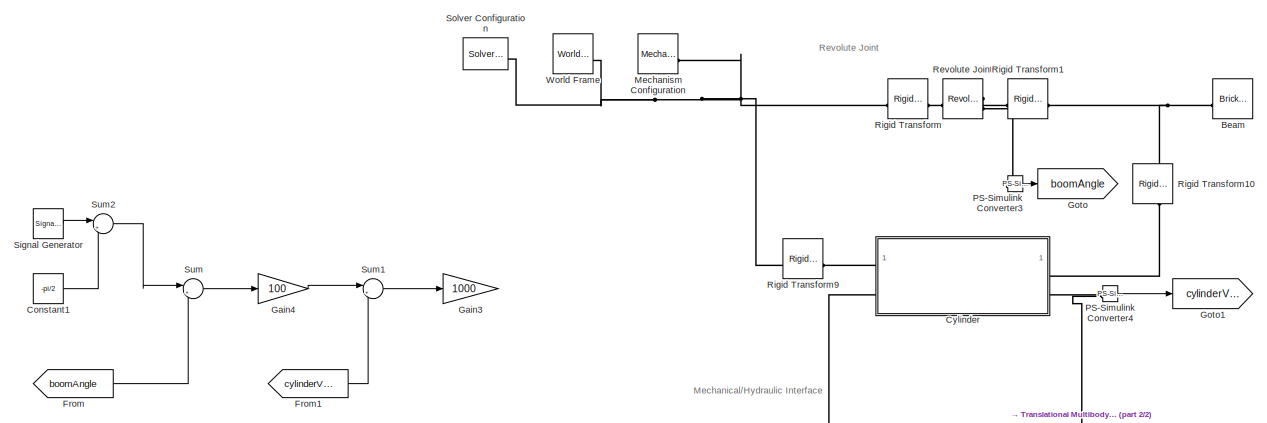
[diagram: root canvas - part 1/2, full width, top band]
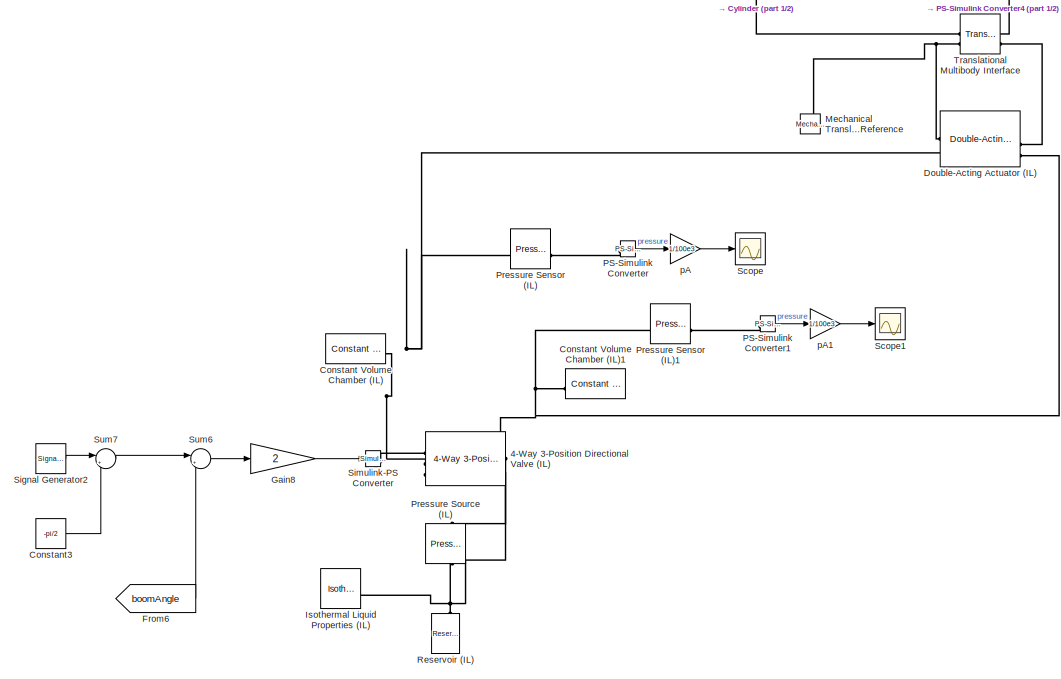
[diagram: root canvas - part 2/2, full width, bottom band]
MODEL slx_41abab94a683
KIND model
CONFIG AbsTol = auto
CONFIG EnableMultiTasking = off
CONFIG FixedStep = 0.001
CONFIG MaxStep = auto
CONFIG MinStep = auto
CONFIG RelTol = 1e-3
CONFIG SampleTimeConstraint = Unconstrained
CONFIG SolverName = FixedStepAuto
CONFIG StartTime = 0.0
CONFIG StopTime = 50
WORKSPACE source: MATLAB code (in-file)
WORKSPACE code: clear;
WORKSPACE rho = 875
WORKSPACE beta = 1000
WORKSPACE pP = 140
WORKSPACE dp0 = 70e5  (= 7000000)
WORKSPACE Q0 = 100/6e4  (= 0.00166666666667)
WORKSPACE Cd = 0.75
WORKSPACE Ad_SI_max = Q0/(Cd*(2/rho*dp0)^0.5)  (= 1.75682092232e-05)
WORKSPACE Ad_max = Ad_SI_max * 1e6  (= 17.5682092232)
WORKSPACE DM = 250
WORKSPACE m = 200
WORKSPACE Wm = m*9.81  (= 1962)
WORKSPACE rW = 0.25
WORKSPACE MW = Wm*rW  (= 490.5)
WORKSPACE Jeff = 0.01 + 0.1 + m*rW^2  (= 12.61)
BLOCK [Reference] 4-Way 3-Position Directional Valve (IL)  REF=SimscapeFluids_lib/Isothermal Liquid/Valves & Orifices/Directional Control
Valves/4-Way 3-Position
Directional Valve
(IL)
  SourceBlock = SimscapeFluids_lib/Isothermal Liquid/Valves & Orifices/Directional Control\nValves/4-Way 3-Position\nDirectional Valve\n(IL)
  SourceType = 4-Way 3-Position\nDirectional Valve\n(IL)
BLOCK [Reference] Beam  REF=sm_lib/Body Elements/Brick Solid
  SourceBlock = sm_lib/Body Elements/Brick Solid
  SourceType = Brick Solid
BLOCK [Reference] Constant Volume Chamber (IL)  REF=fl_lib/Isothermal Liquid/Elements/Constant Volume
Chamber (IL)
  SourceBlock = fl_lib/Isothermal Liquid/Elements/Constant Volume\nChamber (IL)
  SourceType = Constant Volume\nChamber (IL)
BLOCK [Reference] Constant Volume Chamber (IL)1  REF=fl_lib/Isothermal Liquid/Elements/Constant Volume
Chamber (IL)
  SourceBlock = fl_lib/Isothermal Liquid/Elements/Constant Volume\nChamber (IL)
  SourceType = Constant Volume\nChamber (IL)
BLOCK [Constant] Constant1
  Value = -pi/2
BLOCK [Constant] Constant3
  Value = -pi/2
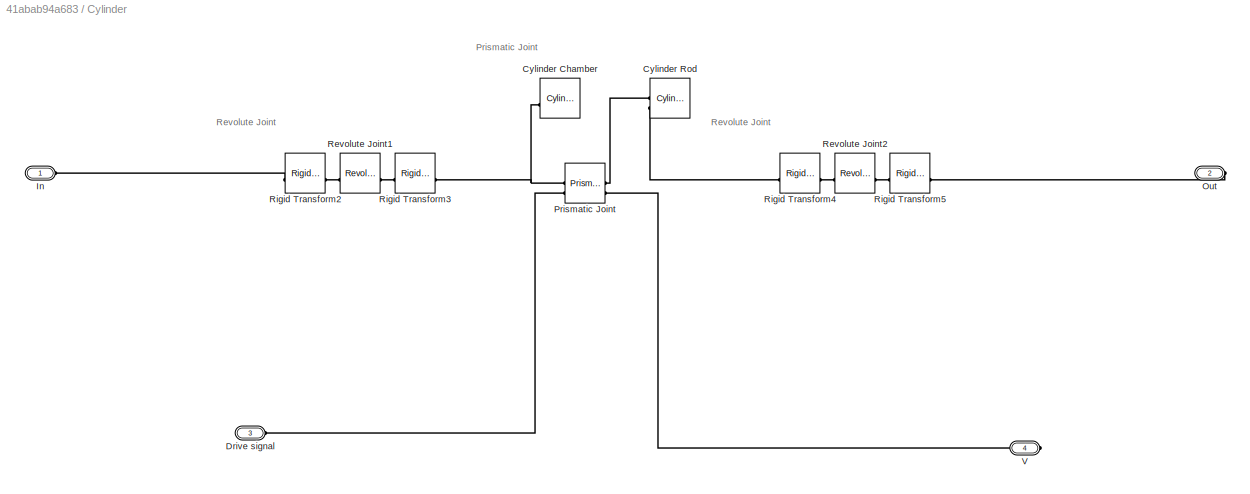
BLOCK [SubSystem] Cylinder
BLOCK [Reference] Cylinder/Cylinder Chamber  REF=sm_lib/Body Elements/Cylindrical Solid
  SourceBlock = sm_lib/Body Elements/Cylindrical Solid
  SourceType = Cylindrical Solid
BLOCK [Reference] Cylinder/Cylinder Rod  REF=sm_lib/Body Elements/Cylindrical Solid
  SourceBlock = sm_lib/Body Elements/Cylindrical Solid
  SourceType = Cylindrical Solid
BLOCK [PMIOPort] Cylinder/Drive signal
  Port = 3
  Side = Left
BLOCK [PMIOPort] Cylinder/In
  Side = Left
BLOCK [PMIOPort] Cylinder/Out
  Port = 2
  Side = Right
BLOCK [Reference] Cylinder/Prismatic Joint  REF=sm_lib/Joints/Prismatic
Joint
  SourceBlock = sm_lib/Joints/Prismatic\nJoint
  SourceType = Prismatic\nJoint
BLOCK [Reference] Cylinder/Revolute Joint1  REF=sm_lib/Joints/Revolute Joint
  SourceBlock = sm_lib/Joints/Revolute Joint
  SourceType = Revolute Joint
BLOCK [Reference] Cylinder/Revolute Joint2  REF=sm_lib/Joints/Revolute Joint
  SourceBlock = sm_lib/Joints/Revolute Joint
  SourceType = Revolute Joint
BLOCK [Reference] Cylinder/Rigid Transform2  REF=sm_lib/Frames and
Transforms/Rigid
Transform
  SourceBlock = sm_lib/Frames and\nTransforms/Rigid\nTransform
  SourceType = Rigid\nTransform
BLOCK [Reference] Cylinder/Rigid Transform3  REF=sm_lib/Frames and
Transforms/Rigid
Transform
  SourceBlock = sm_lib/Frames and\nTransforms/Rigid\nTransform
  SourceType = Rigid\nTransform
BLOCK [Reference] Cylinder/Rigid Transform4  REF=sm_lib/Frames and
Transforms/Rigid
Transform
  SourceBlock = sm_lib/Frames and\nTransforms/Rigid\nTransform
  SourceType = Rigid\nTransform
BLOCK [Reference] Cylinder/Rigid Transform5  REF=sm_lib/Frames and
Transforms/Rigid
Transform
  SourceBlock = sm_lib/Frames and\nTransforms/Rigid\nTransform
  SourceType = Rigid\nTransform
BLOCK [PMIOPort] Cylinder/V
  Port = 4
  Side = Right
BLOCK [Reference] Double-Acting Actuator (IL)  REF=SimscapeFluids_lib/Isothermal Liquid/Actuators/Double-Acting
Actuator (IL)
  SourceBlock = SimscapeFluids_lib/Isothermal Liquid/Actuators/Double-Acting\nActuator (IL)
  SourceType = Double-Acting\nActuator (IL)
BLOCK [From] From
  GotoTag = boomAngle
BLOCK [From] From1
  GotoTag = cylinderVel
BLOCK [From] From6
  GotoTag = boomAngle
BLOCK [Gain] Gain3
  Gain = 1000
BLOCK [Gain] Gain4
  Gain = 100
BLOCK [Gain] Gain8
  Gain = 2
BLOCK [Goto] Goto
  GotoTag = boomAngle
BLOCK [Goto] Goto1
  GotoTag = cylinderVel
BLOCK [Reference] Isothermal Liquid Properties (IL)  REF=fl_lib/Isothermal Liquid/Utilities/Isothermal Liquid
Properties (IL)
  SourceBlock = fl_lib/Isothermal Liquid/Utilities/Isothermal Liquid\nProperties (IL)
  SourceType = Isothermal Liquid\nProperties (IL)
BLOCK [Reference] Mechanical Translational Reference  REF=fl_lib/Mechanical/Translational
Elements/Mechanical
Translational
Reference
  NameLocation = right
  SourceBlock = fl_lib/Mechanical/Translational\nElements/Mechanical\nTranslational\nReference
  SourceType = Mechanical\nTranslational\nReference
BLOCK [Reference] Mechanism Configuration  REF=sm_lib/Utilities/Mechanism
Configuration
  SourceBlock = sm_lib/Utilities/Mechanism\nConfiguration
  SourceType = Mechanism\nConfiguration
BLOCK [Reference] PS-Simulink Converter  REF=nesl_utility/PS-Simulink
Converter
  SourceBlock = nesl_utility/PS-Simulink\nConverter
  SourceType = PS-Simulink\nConverter
BLOCK [Reference] PS-Simulink Converter1  REF=nesl_utility/PS-Simulink
Converter
  SourceBlock = nesl_utility/PS-Simulink\nConverter
  SourceType = PS-Simulink\nConverter
BLOCK [Reference] PS-Simulink Converter3  REF=nesl_utility/PS-Simulink
Converter
  SourceBlock = nesl_utility/PS-Simulink\nConverter
  SourceType = PS-Simulink\nConverter
BLOCK [Reference] PS-Simulink Converter4  REF=nesl_utility/PS-Simulink
Converter
  SourceBlock = nesl_utility/PS-Simulink\nConverter
  SourceType = PS-Simulink\nConverter
BLOCK [Reference] Pressure Sensor (IL)  REF=fl_lib/Isothermal Liquid/Sensors/Pressure Sensor (IL)
  SourceBlock = fl_lib/Isothermal Liquid/Sensors/Pressure Sensor (IL)
  SourceType = Pressure Sensor (IL)
BLOCK [Reference] Pressure Sensor (IL)1  REF=fl_lib/Isothermal Liquid/Sensors/Pressure Sensor (IL)
  SourceBlock = fl_lib/Isothermal Liquid/Sensors/Pressure Sensor (IL)
  SourceType = Pressure Sensor (IL)
BLOCK [Reference] Pressure Source (IL)  REF=fl_lib/Isothermal Liquid/Sources/Pressure Source (IL)
  NameLocation = right
  SourceBlock = fl_lib/Isothermal Liquid/Sources/Pressure Source (IL)
  SourceType = Pressure Source (IL)
BLOCK [Reference] Reservoir (IL)  REF=fl_lib/Isothermal Liquid/Elements/Reservoir (IL)
  NameLocation = right
  SourceBlock = fl_lib/Isothermal Liquid/Elements/Reservoir (IL)
  SourceType = Reservoir (IL)
BLOCK [Reference] Revolute Joint  REF=sm_lib/Joints/Revolute Joint
  SourceBlock = sm_lib/Joints/Revolute Joint
  SourceType = Revolute Joint
BLOCK [Reference] Rigid Transform  REF=sm_lib/Frames and
Transforms/Rigid
Transform
  SourceBlock = sm_lib/Frames and\nTransforms/Rigid\nTransform
  SourceType = Rigid\nTransform
BLOCK [Reference] Rigid Transform1  REF=sm_lib/Frames and
Transforms/Rigid
Transform
  SourceBlock = sm_lib/Frames and\nTransforms/Rigid\nTransform
  SourceType = Rigid\nTransform
BLOCK [Reference] Rigid Transform10  REF=sm_lib/Frames and
Transforms/Rigid
Transform
  NameLocation = left
  SourceBlock = sm_lib/Frames and\nTransforms/Rigid\nTransform
  SourceType = Rigid\nTransform
BLOCK [Reference] Rigid Transform9  REF=sm_lib/Frames and
Transforms/Rigid
Transform
  SourceBlock = sm_lib/Frames and\nTransforms/Rigid\nTransform
  SourceType = Rigid\nTransform
BLOCK [Scope] Scope
  Floating = off
  NumInputPorts = 1
  ScopeSpecificationString = Simulink.scopes.TimeScopeBlockCfg('CurrentConfiguration', extmgr.ConfigurationSet(extmgr.Configuration('Core','General UI',true),extmgr.Configuration('Core','Source UI',true),extmgr.Configuration('Sources','WiredSimulink',true),extmgr.Configuration('Visuals','Time Domain',true,'SerializedDisplays',{struct('MinYLimReal','-8.12701','MaxYLimReal','81.10867','YLabelReal','','MinYLimMag','0.00000','Max...<+1514ch>
BLOCK [Scope] Scope1
  Floating = off
  NumInputPorts = 1
  ScopeSpecificationString = Simulink.scopes.TimeScopeBlockCfg('CurrentConfiguration', extmgr.ConfigurationSet(extmgr.Configuration('Core','General UI',true),extmgr.Configuration('Core','Source UI',true),extmgr.Configuration('Sources','WiredSimulink',true,'DataLoggingVariableName','ScopeData1'),extmgr.Configuration('Visuals','Time Domain',true,'SerializedDisplays',{struct('MinYLimReal','-12.39777','MaxYLimReal','121.4474','YL...<+1557ch>
BLOCK [SignalGenerator] Signal Generator
  Amplitude = 0.1
  Frequency = 0.5
BLOCK [SignalGenerator] Signal Generator2
  Amplitude = 0.1
  Frequency = 0.1
BLOCK [Reference] Simulink-PS Converter  REF=nesl_utility/Simulink-PS
Converter
  SourceBlock = nesl_utility/Simulink-PS\nConverter
  SourceType = Simulink-PS\nConverter
BLOCK [Reference] Solver Configuration  REF=nesl_utility/Solver
Configuration
  SourceBlock = nesl_utility/Solver\nConfiguration
  SourceType = Solver\nConfiguration
BLOCK [Sum] Sum
  Inputs = |+-
BLOCK [Sum] Sum1
  Inputs = |+-
BLOCK [Sum] Sum2
  Inputs = |++
BLOCK [Sum] Sum6
  Inputs = |+-
BLOCK [Sum] Sum7
  Inputs = |++
BLOCK [Reference] Translational Multibody Interface  REF=fl_lib/Mechanical/Multibody Interfaces/Translational
Multibody Interface
  SourceBlock = fl_lib/Mechanical/Multibody Interfaces/Translational\nMultibody Interface
  SourceType = Translational\nMultibody Interface
BLOCK [Reference] World Frame  REF=sm_lib/Frames and
Transforms/World Frame
  SourceBlock = sm_lib/Frames and\nTransforms/World Frame
  SourceType = World Frame
BLOCK [Gain] pA
  Gain = 1/100e3
BLOCK [Gain] pA1
  Gain = 1/100e3
ANNOTATION (root): Mechanical/Hydraulic Interface
ANNOTATION (root): Revolute Joint
ANNOTATION Cylinder: Prismatic Joint
ANNOTATION Cylinder: Revolute Joint
LINE Constant1:1 -> Sum2:2
LINE Constant3:1 -> Sum7:2
LINE From1:1 -> Sum1:2
LINE From6:1 -> Sum6:2
LINE From:1 -> Sum:2
LINE Gain4:1 -> Sum1:1
LINE Gain8:1 -> Simulink-PS Converter:1
LINE PS-Simulink Converter1:1 -> pA1:1
LINE PS-Simulink Converter3:1 -> Goto:1
LINE PS-Simulink Converter4:1 -> Goto1:1
LINE PS-Simulink Converter:1 -> pA:1
LINE Signal Generator2:1 -> Sum7:1
LINE Signal Generator:1 -> Sum2:1
LINE Sum1:1 -> Gain3:1
LINE Sum2:1 -> Sum:1
LINE Sum6:1 -> Gain8:1
LINE Sum7:1 -> Sum6:1
LINE Sum:1 -> Gain4:1
LINE pA1:1 -> Scope1:1
LINE pA:1 -> Scope:1
PLINE 4-Way 3-Position Directional Valve (IL):LConn1 -- Simulink-PS Converter:RConn1
PNET net1: 4-Way 3-Position Directional Valve (IL):LConn2 -- Constant Volume Chamber (IL):LConn1 -- Double-Acting Actuator (IL):LConn2 -- Pressure Sensor (IL):LConn1
PNET net2: 4-Way 3-Position Directional Valve (IL):LConn3 -- Constant Volume Chamber (IL)1:LConn1 -- Double-Acting Actuator (IL):RConn3 -- Pressure Sensor (IL)1:LConn1
PLINE 4-Way 3-Position Directional Valve (IL):RConn1 -- Pressure Source (IL):RConn1
PNET net3: 4-Way 3-Position Directional Valve (IL):RConn2 -- Isothermal Liquid Properties (IL):RConn1 -- Pressure Source (IL):LConn1 -- Reservoir (IL):LConn1
PNET net4: Beam:LConn1 -- Rigid Transform10:LConn1 -- Rigid Transform1:RConn1
PNET net5: Cylinder/Cylinder Chamber:LConn1 -- Cylinder/Prismatic Joint:LConn1 -- Cylinder/Rigid Transform3:RConn1
PLINE Cylinder/Cylinder Rod:LConn1 -- Cylinder/Prismatic Joint:RConn1
PLINE Cylinder/Cylinder Rod:LConn2 -- Cylinder/Rigid Transform4:LConn1
PLINE Cylinder/Drive signal:RConn1 -- Cylinder/Prismatic Joint:LConn2
PLINE Cylinder/In:RConn1 -- Cylinder/Rigid Transform2:LConn1
PLINE Cylinder/Out:RConn1 -- Cylinder/Rigid Transform5:RConn1
PLINE Cylinder/Prismatic Joint:RConn2 -- Cylinder/V:RConn1
PLINE Cylinder/Revolute Joint1:LConn1 -- Cylinder/Rigid Transform2:RConn1
PLINE Cylinder/Revolute Joint1:RConn1 -- Cylinder/Rigid Transform3:LConn1
PLINE Cylinder/Revolute Joint2:LConn1 -- Cylinder/Rigid Transform4:RConn1
PLINE Cylinder/Revolute Joint2:RConn1 -- Cylinder/Rigid Transform5:LConn1
PLINE Cylinder:LConn1 -- Rigid Transform9:RConn1
PLINE Cylinder:LConn2 -- Translational Multibody Interface:LConn1
PLINE Cylinder:RConn1 -- Rigid Transform10:RConn1
PNET net6: Cylinder:RConn2 -- PS-Simulink Converter4:LConn1 -- Translational Multibody Interface:RConn1
PNET net7: Double-Acting Actuator (IL):LConn1 -- Mechanical Translational Reference:LConn1 -- Translational Multibody Interface:LConn2
PLINE Double-Acting Actuator (IL):RConn2 -- Translational Multibody Interface:RConn2
PNET net8: Mechanism Configuration:RConn1 -- Rigid Transform9:LConn1 -- Rigid Transform:LConn1 -- Solver Configuration:RConn1 -- World Frame:RConn1
PLINE PS-Simulink Converter1:LConn1 -- Pressure Sensor (IL)1:RConn1
PLINE PS-Simulink Converter3:LConn1 -- Revolute Joint:RConn2
PLINE PS-Simulink Converter:LConn1 -- Pressure Sensor (IL):RConn1
PLINE Revolute Joint:LConn1 -- Rigid Transform:RConn1
PLINE Revolute Joint:RConn1 -- Rigid Transform1:LConn1
note: PNET lines group multi-terminal physical nets as a canonical sorted terminal list (undirected conserving connections); 2-terminal nets keep the pairwise PLINE form
